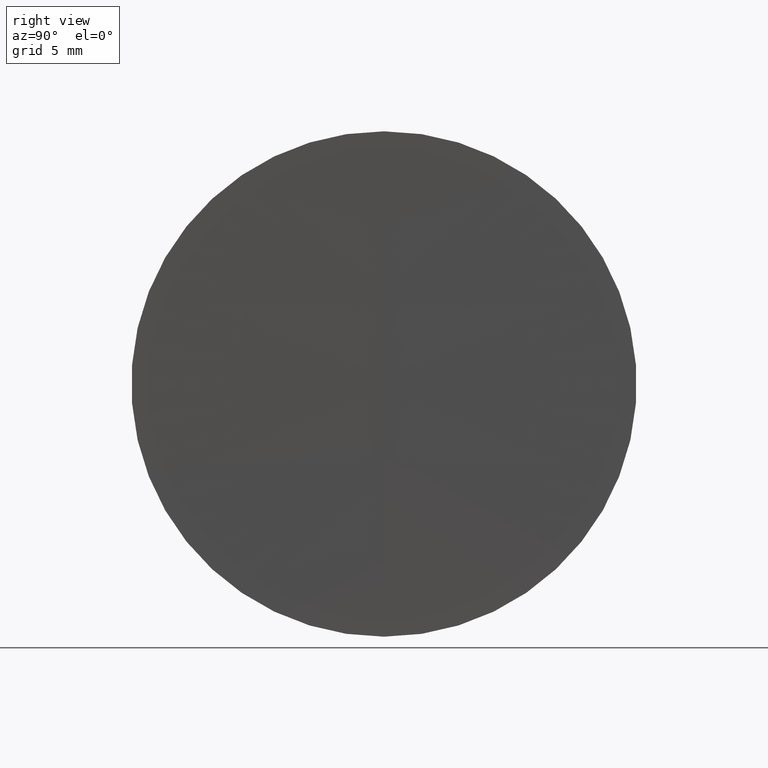
[diagram: clean part render]
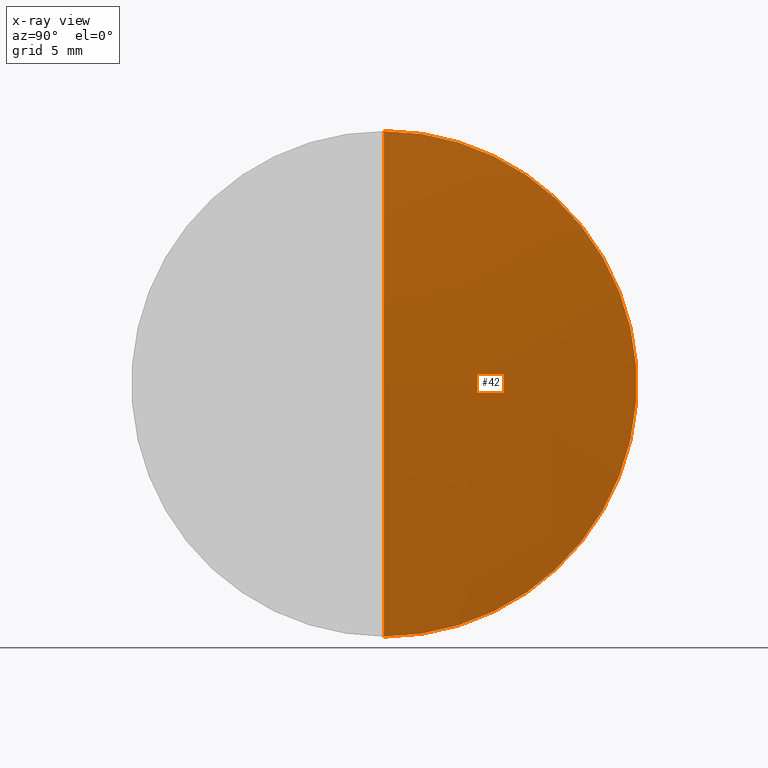
[diagram: x-ray — body ghosted, one internal face saturated and labeled with its STEP entity id]
A machine part, right view, then the same camera in x-ray: the body is ghosted and one INTERNAL B-rep face — a face not visible from any outside direction — is saturated and labeled: STEP entity #42.
In plain terms, the highlighted spherical surface has radius 96.6 mm.
Its self-contained STEP definition (entity closure, byte-faithful):
#11 = CIRCLE ( 'NONE', #110, 96.60000000000003700 ) ;
#28 = VERTEX_POINT ( 'NONE', #240 ) ;
#32 = AXIS2_PLACEMENT_3D ( 'NONE', #97, #254, #79 ) ;
#41 = CARTESIAN_POINT ( 'NONE',  ( 345.7616526594428000, 0.0000000000000000000, 12.70000000000000600 ) ) ;
#42 = ADVANCED_FACE ( 'NONE', ( #208 ), #58, .T. ) ;
#53 = DIRECTION ( 'NONE',  ( 0.0000000000000000000, -1.000000000000000000, 0.0000000000000000000 ) ) ;
#55 = AXIS2_PLACEMENT_3D ( 'NONE', #85, #324, #137 ) ;
#58 = SPHERICAL_SURFACE ( 'NONE', #55, 96.60000000000003700 ) ;
#69 = ORIENTED_EDGE ( 'NONE', *, *, #267, .F. ) ;
#79 = DIRECTION ( 'NONE',  ( 0.0000000000000000000, 0.0000000000000000000, 1.000000000000000000 ) ) ;
#80 = DIRECTION ( 'NONE',  ( -0.0000000000000000000, 1.000000000000000000, 1.224646799147353200E-016 ) ) ;
#85 = CARTESIAN_POINT ( 'NONE',  ( 250.0001259381127700, 0.0000000000000000000, 6.763720156497999700E-015 ) ) ;
#97 = CARTESIAN_POINT ( 'NONE',  ( 345.7616526594428000, 0.0000000000000000000, 0.0000000000000000000 ) ) ;
#110 = AXIS2_PLACEMENT_3D ( 'NONE', #256, #80, #231 ) ;
#137 = DIRECTION ( 'NONE',  ( 0.0000000000000000000, 0.0000000000000000000, 1.000000000000000000 ) ) ;
#140 = CIRCLE ( 'NONE', #339, 96.60000000000003700 ) ;
#153 = CARTESIAN_POINT ( 'NONE',  ( 345.7616526594428000, 1.555301434917139200E-015, -12.70000000000000600 ) ) ;
#205 = EDGE_LOOP ( 'NONE', ( #280, #303, #69 ) ) ;
#206 = DIRECTION ( 'NONE',  ( 0.0000000000000000000, 0.0000000000000000000, -1.000000000000000000 ) ) ;
#208 = FACE_OUTER_BOUND ( 'NONE', #205, .T. ) ;
#229 = EDGE_CURVE ( 'NONE', #28, #291, #11, .T. ) ;
#230 = CARTESIAN_POINT ( 'NONE',  ( 250.0001259381127700, 0.0000000000000000000, 6.763720156497999700E-015 ) ) ;
#231 = DIRECTION ( 'NONE',  ( 0.0000000000000000000, -1.224646799147353200E-016, 1.000000000000000000 ) ) ;
#240 = CARTESIAN_POINT ( 'NONE',  ( 346.6001259381128000, 0.0000000000000000000, 1.267876419637971800E-014 ) ) ;
#248 = EDGE_CURVE ( 'NONE', #28, #314, #140, .T. ) ;
#254 = DIRECTION ( 'NONE',  ( -1.000000000000000000, -0.0000000000000000000, -0.0000000000000000000 ) ) ;
#256 = CARTESIAN_POINT ( 'NONE',  ( 250.0001259381127700, 0.0000000000000000000, 6.763720156497999700E-015 ) ) ;
#267 = EDGE_CURVE ( 'NONE', #314, #291, #279, .T. ) ;
#279 = CIRCLE ( 'NONE', #32, 12.70000000000000600 ) ;
#280 = ORIENTED_EDGE ( 'NONE', *, *, #248, .F. ) ;
#291 = VERTEX_POINT ( 'NONE', #153 ) ;
#303 = ORIENTED_EDGE ( 'NONE', *, *, #229, .T. ) ;
#314 = VERTEX_POINT ( 'NONE', #41 ) ;
#324 = DIRECTION ( 'NONE',  ( 0.0000000000000000000, 1.000000000000000000, 0.0000000000000000000 ) ) ;
#339 = AXIS2_PLACEMENT_3D ( 'NONE', #230, #53, #206 ) ;